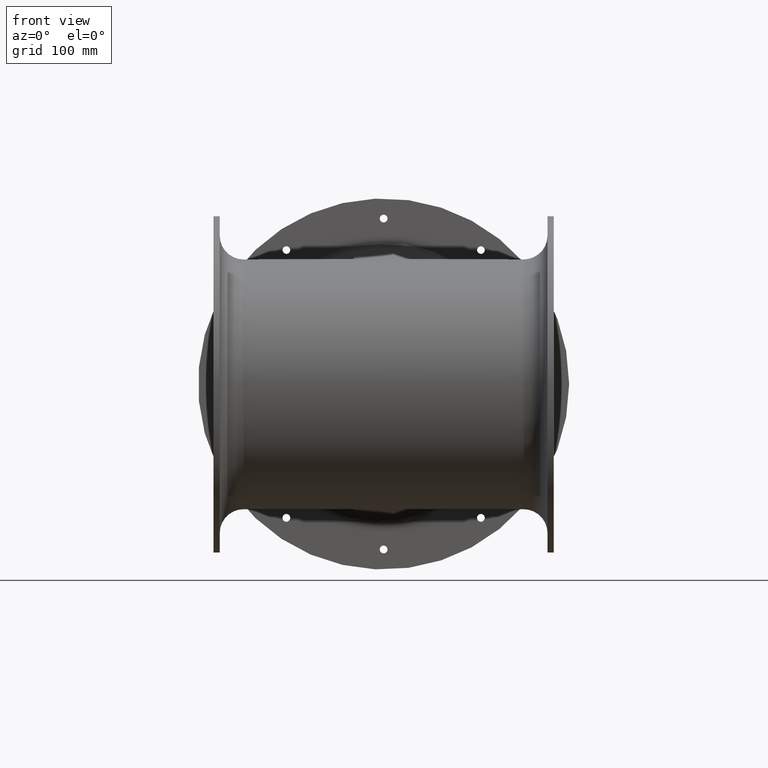
[diagram: clean part render]
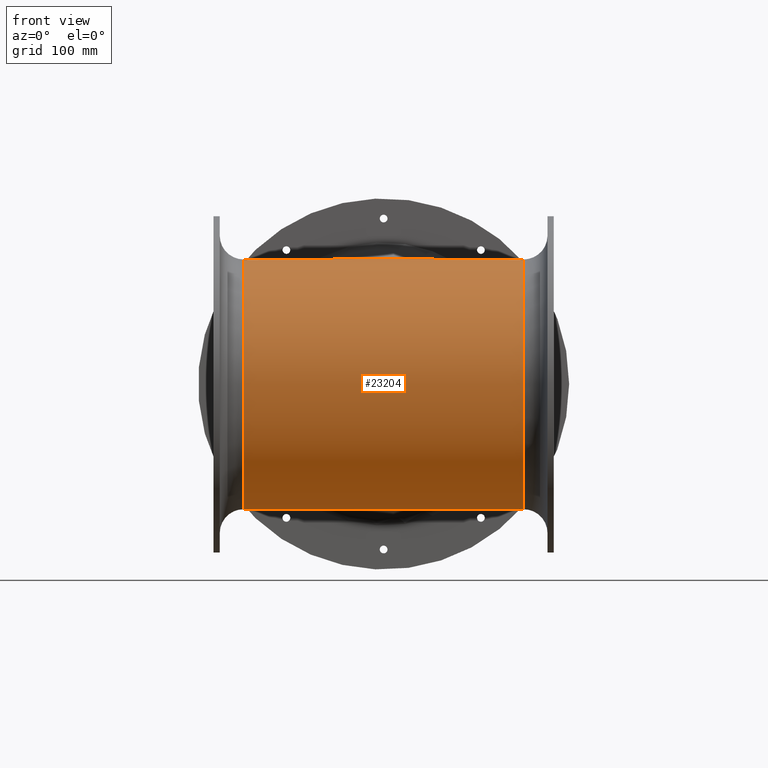
[diagram: same view with one face highlighted and labeled with its STEP entity id]
A machine part, front view. The second image highlights one B-rep face of the part: STEP entity #23204.
In plain terms, the highlighted cylindrical surface (bore or boss wall) has radius 202.5 mm, axis along (1, 0, -0).
Its self-contained STEP definition (entity closure, byte-faithful):
#1283=CIRCLE('',#24619,202.5);
#1284=CIRCLE('',#24620,202.5);
#4580=FACE_BOUND('',#6194,.T.);
#4581=FACE_BOUND('',#6195,.T.);
#4780=FACE_OUTER_BOUND('',#6193,.T.);
#6193=EDGE_LOOP('',(#14747));
#6194=EDGE_LOOP('',(#14748));
#6195=EDGE_LOOP('',(#14749));
#7784=B_SPLINE_CURVE_WITH_KNOTS('',3,(#31965,#31966,#31967,#31968,#31969,
#31970,#31971,#31972,#31973,#31974,#31975,#31976,#31977,#31978,#31979,#31980,
#31981,#31982,#31983,#31984,#31985,#31986,#31987,#31988,#31989,#31990,#31991,
#31992,#31993,#31994,#31995,#31996,#31997,#31998,#31999,#32000,#32001,#32002,
#32003,#32004,#32005,#32006,#32007,#32008,#32009,#32010,#32011,#32012,#32013,
#32014,#32015,#32016,#32017,#32018,#32019,#32020,#32021,#32022,#32023,#32024,
#32025,#32026,#32027,#32028,#32029,#32030,#32031,#32032,#32033,#32034,#32035,
#32036,#32037,#32038,#32039,#32040,#32041,#32042,#32043,#32044,#32045,#32046,
#32047,#32048,#32049,#32050,#32051,#32052,#32053,#32054,#32055,#32056,#32057,
#32058,#32059,#32060,#32061,#32062,#32063,#32064,#32065,#32066,#32067,#32068,
#32069,#32070,#32071,#32072,#32073,#32074,#32075,#32076,#32077,#32078,#32079,
#32080,#32081,#32082,#32083,#32084,#32085,#32086,#32087,#32088,#32089,#32090,
#32091,#32092,#32093,#32094,#32095,#32096,#32097,#32098,#32099,#32100,#32101,
#32102,#32103,#32104,#32105,#32106,#32107,#32108,#32109,#32110,#32111,#32112,
#32113,#32114,#32115,#32116,#32117,#32118,#32119,#32120,#32121,#32122,#32123,
#32124,#32125,#32126,#32127,#32128,#32129,#32130,#32131,#32132,#32133,#32134,
#32135,#32136,#32137,#32138,#32139,#32140,#32141,#32142,#32143,#32144,#32145,
#32146,#32147,#32148,#32149,#32150,#32151,#32152,#32153,#32154,#32155,#32156,
#32157,#32158,#32159,#32160,#32161,#32162,#32163,#32164,#32165,#32166,#32167,
#32168,#32169,#32170,#32171,#32172,#32173,#32174,#32175,#32176,#32177,#32178,
#32179,#32180,#32181,#32182,#32183,#32184,#32185,#32186,#32187,#32188,#32189,
#32190,#32191,#32192,#32193,#32194,#32195,#32196,#32197,#32198,#32199,#32200,
#32201,#32202,#32203,#32204,#32205,#32206,#32207,#32208,#32209,#32210,#32211,
#32212,#32213,#32214,#32215,#32216,#32217,#32218,#32219,#32220,#32221,#32222,
#32223,#32224,#32225,#32226,#32227,#32228,#32229,#32230,#32231,#32232,#32233,
#32234,#32235,#32236,#32237,#32238,#32239,#32240,#32241,#32242,#32243,#32244,
#32245,#32246,#32247,#32248,#32249,#32250,#32251,#32252,#32253,#32254,#32255,
#32256,#32257,#32258,#32259,#32260,#32261,#32262,#32263,#32264,#32265,#32266,
#32267,#32268,#32269,#32270,#32271,#32272,#32273,#32274,#32275,#32276,#32277,
#32278,#32279,#32280,#32281,#32282,#32283,#32284,#32285,#32286,#32287,#32288,
#32289,#32290,#32291,#32292,#32293,#32294,#32295,#32296,#32297,#32298,#32299,
#32300,#32301,#32302,#32303,#32304,#32305,#32306,#32307,#32308,#32309,#32310,
#32311,#32312,#32313,#32314,#32315,#32316,#32317,#32318,#32319,#32320,#32321,
#32322,#32323,#32324,#32325,#32326,#32327,#32328,#32329,#32330,#32331,#32332,
#32333,#32334,#32335,#32336,#32337,#32338,#32339,#32340,#32341,#32342,#32343,
#32344,#32345,#32346,#32347,#32348,#32349),.UNSPECIFIED.,.T.,.F.,(4,3,3,
3,3,3,3,3,3,3,3,3,3,3,3,3,3,3,3,3,3,3,3,3,3,3,3,3,3,3,3,3,3,3,3,3,3,3,3,
3,3,3,3,3,3,3,3,3,3,3,3,3,3,3,3,3,3,3,3,3,3,3,3,3,3,3,3,3,3,3,3,3,3,3,3,
3,3,3,3,3,3,3,3,3,3,3,3,3,3,3,3,3,3,3,3,3,3,3,3,3,3,3,3,3,3,3,3,3,3,3,3,
3,3,3,3,3,3,3,3,3,3,3,3,3,3,3,3,3,4),(-160.342906912036,-160.081610975274,
-159.806046325259,-159.70745696218,-159.627059865564,-158.911603294999,
-158.196065782003,-157.71663035812,-157.65844358391,-157.479094196927,-156.045520752024,
-154.613641021606,-151.752290572736,-149.810930225153,-148.890155718497,
-147.45892251172,-145.816008437067,-145.668549316929,-144.594002031974,
-143.161990087913,-137.436836950914,-136.959595278468,-136.665929451944,
-136.1641162625,-134.891639086557,-130.162442041686,-129.800813206733,-129.562154742946,
-127.892585473663,-126.461189080719,-126.039837570184,-125.983600632645,
-122.695283499125,-122.165629504571,-120.625039987267,-118.692210297802,
-118.34832113825,-116.439800674157,-116.069722114912,-114.530009733055,
-112.622185500934,-110.713585221901,-110.068461128252,-108.803075963811,
-106.894432287388,-103.077776392632,-102.68580357898,-101.884102439985,
-101.168158906038,-99.2597980532162,-95.4440953012599,-93.5352335895442,
-91.6495833604302,-91.6246814189812,-87.805743866731,-85.897824174083,-84.5253022285759,
-83.9893061310752,-83.7009996830874,-82.7160553985728,-82.2390318148518,
-81.7454708848339,-81.4439640252966,-81.025646101809,-80.8076057675436,
-80.531767047028,-80.287961013862,-80.1716033146539,-80.0854849546987,-79.8375311491397,
-79.5349982732622,-79.3190264793224,-78.8993080078128,-78.0180719655853,
-77.6264146846165,-76.3537563673086,-76.2634474649733,-75.636812081051,
-75.3979507631704,-74.4430331145185,-72.5348999443966,-69.6731482481115,
-68.9386351468239,-68.7183700297651,-64.9011242767384,-61.0844988520505,
-58.7703045195937,-57.2641197006221,-54.4022140550659,-53.4482350096057,
-51.6487655418366,-50.9021158366082,-48.3580124577464,-46.7305625843402,
-45.8116971581924,-43.9036909448839,-42.9208168368777,-41.9944043869412,
-40.7550662017537,-38.8470287143703,-38.1767120407175,-37.2227430335197,
-36.4198872014549,-34.3586547744628,-32.4507825263865,-31.5152553461049,
-30.5409726766878,-25.4522695863814,-24.2770105557074,-24.1785704467151,
-22.9049318856175,-17.1807867851427,-15.7491697433524,-14.2375590226819,
-11.4519378130212,-8.58974760449831,-7.63804363807765,-5.72603196125493,
-4.29487985096732,-3.23889387569538,-2.86323948060928,-2.77950123683371,
-1.47209831865792,-1.43167218082337,-1.27598788093155,-0.715991356617883,
-0.534179025333353,-0.212204773589796,0.),.UNSPECIFIED.);
#9105=VERTEX_POINT('',#31875);
#9108=VERTEX_POINT('',#32354);
#9109=VERTEX_POINT('',#32356);
#11294=EDGE_CURVE('',#9105,#9105,#7784,.T.);
#11296=EDGE_CURVE('',#9108,#9108,#1283,.T.);
#11297=EDGE_CURVE('',#9109,#9109,#1284,.T.);
#14747=ORIENTED_EDGE('',*,*,#11296,.F.);
#14748=ORIENTED_EDGE('',*,*,#11297,.T.);
#14749=ORIENTED_EDGE('',*,*,#11294,.F.);
#21532=CYLINDRICAL_SURFACE('',#24618,202.5);
#23204=ADVANCED_FACE('',(#4780,#4580,#4581),#21532,.T.);
#24618=AXIS2_PLACEMENT_3D('',#32353,#26279,#26280);
#24619=AXIS2_PLACEMENT_3D('',#32355,#26281,#26282);
#24620=AXIS2_PLACEMENT_3D('',#32357,#26283,#26284);
#26279=DIRECTION('center_axis',(1.,2.75075785414574E-15,-9.97823151778132E-16));
#26280=DIRECTION('ref_axis',(-9.97823151778074E-16,-2.09740053427586E-14,
-1.));
#26281=DIRECTION('center_axis',(1.,2.75075785414574E-15,-9.97823151778132E-16));
#26282=DIRECTION('ref_axis',(-9.97823151778074E-16,-2.09740053427586E-14,
-1.));
#26283=DIRECTION('center_axis',(1.,2.75075785414574E-15,-9.97823151778132E-16));
#26284=DIRECTION('ref_axis',(-9.97823151778074E-16,-2.09740053427586E-14,
-1.));
#31875=CARTESIAN_POINT('',(-619.546366146059,761.216708096501,488.345023507196));
#31965=CARTESIAN_POINT('Ctrl Pts',(-619.546366145671,761.216708097107,488.345023507166));
#31966=CARTESIAN_POINT('Ctrl Pts',(-618.652493804318,761.216708097358,488.345023507154));
#31967=CARTESIAN_POINT('Ctrl Pts',(-617.757691795606,761.269158578316,488.342468680898));
#31968=CARTESIAN_POINT('Ctrl Pts',(-616.870455212771,761.371310158735,488.337377584712));
#31969=CARTESIAN_POINT('Ctrl Pts',(-615.934768873905,761.479039979778,488.332008476582));
#31970=CARTESIAN_POINT('Ctrl Pts',(-615.004232804283,761.641070294143,488.323862069854));
#31971=CARTESIAN_POINT('Ctrl Pts',(-614.087220509187,761.85106832479,488.31289658576));
#31972=CARTESIAN_POINT('Ctrl Pts',(-613.759139029564,761.926199776114,488.308973440709));
#31973=CARTESIAN_POINT('Ctrl Pts',(-613.432785559318,762.007463503721,488.304688088026));
#31974=CARTESIAN_POINT('Ctrl Pts',(-613.108370297078,762.094177373768,488.300055603557));
#31975=CARTESIAN_POINT('Ctrl Pts',(-612.84381797249,762.164890310442,488.296277931304));
#31976=CARTESIAN_POINT('Ctrl Pts',(-612.580448851027,762.23928743919,488.29226621087));
#31977=CARTESIAN_POINT('Ctrl Pts',(-612.31834750872,762.317026791313,488.288027243306));
#31978=CARTESIAN_POINT('Ctrl Pts',(-609.985898509938,763.00883200081,488.250304522916));
#31979=CARTESIAN_POINT('Ctrl Pts',(-607.753948644586,763.965528843165,488.1944096836));
#31980=CARTESIAN_POINT('Ctrl Pts',(-605.586703603494,765.066907231537,488.11931255779));
#31981=CARTESIAN_POINT('Ctrl Pts',(-603.419213373401,766.168410223201,488.044206935945));
#31982=CARTESIAN_POINT('Ctrl Pts',(-601.316412140841,767.414485484406,487.949801504174));
#31983=CARTESIAN_POINT('Ctrl Pts',(-599.275839876772,768.722861225201,487.836755843185));
#31984=CARTESIAN_POINT('Ctrl Pts',(-597.908584337238,769.599519215164,487.761011254802));
#31985=CARTESIAN_POINT('Ctrl Pts',(-596.569250574578,770.504149750164,487.677044365227));
#31986=CARTESIAN_POINT('Ctrl Pts',(-595.255868244134,771.424781380876,487.585056039647));
#31987=CARTESIAN_POINT('Ctrl Pts',(-595.09646934012,771.53651401922,487.573891858479));
#31988=CARTESIAN_POINT('Ctrl Pts',(-594.937424284612,771.648504980322,487.562607991637));
#31989=CARTESIAN_POINT('Ctrl Pts',(-594.77872895805,771.760734145174,487.551205164301));
#31990=CARTESIAN_POINT('Ctrl Pts',(-594.289581554319,772.106658664816,487.516058172217));
#31991=CARTESIAN_POINT('Ctrl Pts',(-593.803756956828,772.454846210195,487.479781305552));
#31992=CARTESIAN_POINT('Ctrl Pts',(-593.319705447315,772.805388007599,487.442327262654));
#31993=CARTESIAN_POINT('Ctrl Pts',(-589.450590522123,775.60733464672,487.142950040312));
#31994=CARTESIAN_POINT('Ctrl Pts',(-585.694805618939,778.559676787279,486.767152931257));
#31995=CARTESIAN_POINT('Ctrl Pts',(-581.998448303942,781.569143682441,486.312063960826));
#31996=CARTESIAN_POINT('Ctrl Pts',(-578.306458099642,784.575055002763,485.857512661335));
#31997=CARTESIAN_POINT('Ctrl Pts',(-574.673726421535,787.638009919266,485.324704888202));
#31998=CARTESIAN_POINT('Ctrl Pts',(-571.07189023225,790.727731583137,484.711245775177));
#31999=CARTESIAN_POINT('Ctrl Pts',(-563.874277626924,796.901976725372,483.485359640241));
#32000=CARTESIAN_POINT('Ctrl Pts',(-556.80005106224,803.18298183582,481.936492192086));
#32001=CARTESIAN_POINT('Ctrl Pts',(-549.811010250746,809.460401376926,480.053938020954));
#32002=CARTESIAN_POINT('Ctrl Pts',(-545.069107103428,813.719485889645,478.77666839414));
#32003=CARTESIAN_POINT('Ctrl Pts',(-540.366396079924,817.977165487797,477.346719943772));
#32004=CARTESIAN_POINT('Ctrl Pts',(-535.710886103983,822.215175762228,475.762022572513));
#32005=CARTESIAN_POINT('Ctrl Pts',(-533.502808192703,824.225236297617,475.010410981168));
#32006=CARTESIAN_POINT('Ctrl Pts',(-531.304196921742,826.231786811195,474.223680893785));
#32007=CARTESIAN_POINT('Ctrl Pts',(-529.11607860459,828.232805618885,473.401737225632));
#32008=CARTESIAN_POINT('Ctrl Pts',(-525.714911898494,831.343148644505,472.124124668535));
#32009=CARTESIAN_POINT('Ctrl Pts',(-522.339099808661,834.440085660915,470.761329596188));
#32010=CARTESIAN_POINT('Ctrl Pts',(-518.99711426872,837.512165114408,469.315711304828));
#32011=CARTESIAN_POINT('Ctrl Pts',(-515.160845619516,841.038608288516,467.65628457674));
#32012=CARTESIAN_POINT('Ctrl Pts',(-511.369146061002,844.532455890204,465.888047937561));
#32013=CARTESIAN_POINT('Ctrl Pts',(-507.617972508958,847.995829640591,464.005580725556));
#32014=CARTESIAN_POINT('Ctrl Pts',(-507.281287371247,848.306683417927,463.836620605819));
#32015=CARTESIAN_POINT('Ctrl Pts',(-506.944887817214,848.617325501066,463.666720207303));
#32016=CARTESIAN_POINT('Ctrl Pts',(-506.608769870089,848.927757584316,463.495873803803));
#32017=CARTESIAN_POINT('Ctrl Pts',(-504.159449494595,851.189902861633,462.250901374471));
#32018=CARTESIAN_POINT('Ctrl Pts',(-501.725084012354,853.440922053374,460.955743550706));
#32019=CARTESIAN_POINT('Ctrl Pts',(-499.303517656462,855.682253232738,459.607335874912));
#32020=CARTESIAN_POINT('Ctrl Pts',(-496.076380057658,858.669197655179,457.810359674575));
#32021=CARTESIAN_POINT('Ctrl Pts',(-492.871971111673,861.638844399713,455.91865255787));
#32022=CARTESIAN_POINT('Ctrl Pts',(-489.700159656451,864.581091806051,453.932728872514));
#32023=CARTESIAN_POINT('Ctrl Pts',(-477.019325269454,876.344134033522,445.993048436042));
#32024=CARTESIAN_POINT('Ctrl Pts',(-464.860187877286,887.668760585621,436.545848168682));
#32025=CARTESIAN_POINT('Ctrl Pts',(-453.66067169434,898.11237857741,425.55122460697));
#32026=CARTESIAN_POINT('Ctrl Pts',(-452.727093900727,898.982945634312,424.634726408416));
#32027=CARTESIAN_POINT('Ctrl Pts',(-451.800178208063,899.847392313896,423.707484343248));
#32028=CARTESIAN_POINT('Ctrl Pts',(-450.880400645012,900.705349863333,422.76960301763));
#32029=CARTESIAN_POINT('Ctrl Pts',(-450.314424843093,901.233285346391,422.192487248887));
#32030=CARTESIAN_POINT('Ctrl Pts',(-449.751151813853,901.758764961721,421.611343911578));
#32031=CARTESIAN_POINT('Ctrl Pts',(-449.190429510586,902.281922138532,421.025949201209));
#32032=CARTESIAN_POINT('Ctrl Pts',(-448.232272919044,903.175887822531,420.025632650351));
#32033=CARTESIAN_POINT('Ctrl Pts',(-447.28140781651,904.063233028277,419.012732104754));
#32034=CARTESIAN_POINT('Ctrl Pts',(-446.337086745153,904.944538056021,417.986063403308));
#32035=CARTESIAN_POINT('Ctrl Pts',(-443.942516344569,907.179314973888,415.382679280833));
#32036=CARTESIAN_POINT('Ctrl Pts',(-441.59002564228,909.375097798106,412.690653463355));
#32037=CARTESIAN_POINT('Ctrl Pts',(-439.292864493951,911.520097124681,409.915078297853));
#32038=CARTESIAN_POINT('Ctrl Pts',(-430.755400781706,919.492047166907,399.599575498531));
#32039=CARTESIAN_POINT('Ctrl Pts',(-422.983286146871,926.757632187585,388.125832070791));
#32040=CARTESIAN_POINT('Ctrl Pts',(-416.401175610957,932.913345136752,375.641482076938));
#32041=CARTESIAN_POINT('Ctrl Pts',(-415.897859521132,933.384055762888,374.686837789422));
#32042=CARTESIAN_POINT('Ctrl Pts',(-415.401321948826,933.848481450167,373.725963062049));
#32043=CARTESIAN_POINT('Ctrl Pts',(-414.911783127042,934.306428054695,372.758955638983));
#32044=CARTESIAN_POINT('Ctrl Pts',(-414.58870993188,934.6086518338,372.120775041218));
#32045=CARTESIAN_POINT('Ctrl Pts',(-414.268684963261,934.908055563213,371.479924206457));
#32046=CARTESIAN_POINT('Ctrl Pts',(-413.951489730434,935.204809530658,370.835928932817));
#32047=CARTESIAN_POINT('Ctrl Pts',(-411.732505309396,937.280794168804,366.330768288713));
#32048=CARTESIAN_POINT('Ctrl Pts',(-409.652089667039,939.226143498468,361.671287074041));
#32049=CARTESIAN_POINT('Ctrl Pts',(-407.748201353035,941.007587708483,356.898392144343));
#32050=CARTESIAN_POINT('Ctrl Pts',(-406.115912764972,942.534899490847,352.806375890829));
#32051=CARTESIAN_POINT('Ctrl Pts',(-404.613374312098,943.942241478376,348.631094557792));
#32052=CARTESIAN_POINT('Ctrl Pts',(-403.249408670715,945.2183450661,344.386149105026));
#32053=CARTESIAN_POINT('Ctrl Pts',(-402.847906343234,945.593983971534,343.136590151632));
#32054=CARTESIAN_POINT('Ctrl Pts',(-402.45840586277,945.958267789556,341.881008979661));
#32055=CARTESIAN_POINT('Ctrl Pts',(-402.081309172245,946.311120189809,340.6190930996));
#32056=CARTESIAN_POINT('Ctrl Pts',(-402.030978836407,946.358214689051,340.450667728498));
#32057=CARTESIAN_POINT('Ctrl Pts',(-401.98086314246,946.405110393898,340.282111999532));
#32058=CARTESIAN_POINT('Ctrl Pts',(-401.930963249443,946.451806912028,340.113425217079));
#32059=CARTESIAN_POINT('Ctrl Pts',(-399.013189267605,949.182271396081,330.249878921465));
#32060=CARTESIAN_POINT('Ctrl Pts',(-396.837026634295,951.220252944696,319.933626138012));
#32061=CARTESIAN_POINT('Ctrl Pts',(-395.537754889764,952.43593424986,309.479958755927));
#32062=CARTESIAN_POINT('Ctrl Pts',(-395.32847931154,952.63174579517,307.796171438025));
#32063=CARTESIAN_POINT('Ctrl Pts',(-395.141209306322,952.806812413054,306.106418027498));
#32064=CARTESIAN_POINT('Ctrl Pts',(-394.976682735499,952.960742656979,304.412290755821));
#32065=CARTESIAN_POINT('Ctrl Pts',(-394.498128975998,953.408475181654,299.484630920231));
#32066=CARTESIAN_POINT('Ctrl Pts',(-394.212344076009,953.676758121919,294.519751172341));
#32067=CARTESIAN_POINT('Ctrl Pts',(-394.12235112537,953.761779934495,289.557409304354));
#32068=CARTESIAN_POINT('Ctrl Pts',(-394.009445614276,953.868448636153,283.331635609293));
#32069=CARTESIAN_POINT('Ctrl Pts',(-394.202271307799,953.686438471771,277.082805051475));
#32070=CARTESIAN_POINT('Ctrl Pts',(-394.699810791057,953.220367503906,270.890353794594));
#32071=CARTESIAN_POINT('Ctrl Pts',(-394.788333041969,953.1374441329,269.788592542734));
#32072=CARTESIAN_POINT('Ctrl Pts',(-394.886464083681,953.045515784878,268.687690998396));
#32073=CARTESIAN_POINT('Ctrl Pts',(-394.994220843027,952.944628869019,267.588028826426));
#32074=CARTESIAN_POINT('Ctrl Pts',(-395.592250686784,952.384725370671,261.485109613947));
#32075=CARTESIAN_POINT('Ctrl Pts',(-396.487351782239,951.547300450746,255.420421789895));
#32076=CARTESIAN_POINT('Ctrl Pts',(-397.656858044699,950.452233176919,249.465314994408));
#32077=CARTESIAN_POINT('Ctrl Pts',(-397.88363538389,950.23989019889,248.310568485533));
#32078=CARTESIAN_POINT('Ctrl Pts',(-398.120708827034,950.017920320726,247.159934188641));
#32079=CARTESIAN_POINT('Ctrl Pts',(-398.367933365781,949.786486789331,246.013617493596));
#32080=CARTESIAN_POINT('Ctrl Pts',(-399.396511417377,948.823607246699,241.244365223247));
#32081=CARTESIAN_POINT('Ctrl Pts',(-400.602991212332,947.694191822534,236.536324398772));
#32082=CARTESIAN_POINT('Ctrl Pts',(-401.979818202516,946.405838040006,231.89759835856));
#32083=CARTESIAN_POINT('Ctrl Pts',(-403.685814677094,944.809466798976,226.149853487521));
#32084=CARTESIAN_POINT('Ctrl Pts',(-405.653388292269,942.967666804612,220.508952482079));
#32085=CARTESIAN_POINT('Ctrl Pts',(-407.845387237724,940.916622247055,215.035174749133));
#32086=CARTESIAN_POINT('Ctrl Pts',(-410.038277824026,938.864743384761,209.559170444035));
#32087=CARTESIAN_POINT('Ctrl Pts',(-412.455734960465,936.604121890353,204.250115109189));
#32088=CARTESIAN_POINT('Ctrl Pts',(-415.053509395914,934.174244266183,199.139279312796));
#32089=CARTESIAN_POINT('Ctrl Pts',(-415.931580564918,933.352923732392,197.411770757362));
#32090=CARTESIAN_POINT('Ctrl Pts',(-416.830245319684,932.512354654545,195.706868125909));
#32091=CARTESIAN_POINT('Ctrl Pts',(-417.749034715529,931.653126274443,194.023577794872));
#32092=CARTESIAN_POINT('Ctrl Pts',(-419.551203448946,929.967784096479,190.721870986349));
#32093=CARTESIAN_POINT('Ctrl Pts',(-421.433287737398,928.208363559195,187.498553012482));
#32094=CARTESIAN_POINT('Ctrl Pts',(-423.39259670831,926.376960476024,184.346917707172));
#32095=CARTESIAN_POINT('Ctrl Pts',(-426.347920338282,923.614563688148,179.593148684973));
#32096=CARTESIAN_POINT('Ctrl Pts',(-429.478973348015,920.687705440284,175.002936575652));
#32097=CARTESIAN_POINT('Ctrl Pts',(-432.755382449459,917.626563663495,170.594269186583));
#32098=CARTESIAN_POINT('Ctrl Pts',(-439.307116681014,911.505292861936,161.778392977542));
#32099=CARTESIAN_POINT('Ctrl Pts',(-446.44035013558,904.845662765392,153.689632385472));
#32100=CARTESIAN_POINT('Ctrl Pts',(-453.914417832706,897.875371358321,146.376495377379));
#32101=CARTESIAN_POINT('Ctrl Pts',(-454.682008997706,897.159518315726,145.625431889151));
#32102=CARTESIAN_POINT('Ctrl Pts',(-455.45319136814,896.440418081933,144.882516401546));
#32103=CARTESIAN_POINT('Ctrl Pts',(-456.228099610878,895.717954403451,144.147402028485));
#32104=CARTESIAN_POINT('Ctrl Pts',(-457.813017745973,894.240301020996,142.643874208062));
#32105=CARTESIAN_POINT('Ctrl Pts',(-459.414341149613,892.747829133419,141.172177887667));
#32106=CARTESIAN_POINT('Ctrl Pts',(-461.033326870417,891.239209608484,139.729641410605));
#32107=CARTESIAN_POINT('Ctrl Pts',(-462.479130427357,889.891966425796,138.441412402311));
#32108=CARTESIAN_POINT('Ctrl Pts',(-463.939020000674,888.531827720058,137.176466326255));
#32109=CARTESIAN_POINT('Ctrl Pts',(-465.412173163191,887.159774965809,135.934946814397));
#32110=CARTESIAN_POINT('Ctrl Pts',(-469.338890414281,883.502542739995,132.625653382579));
#32111=CARTESIAN_POINT('Ctrl Pts',(-473.359858804397,879.760571712518,129.482796907156));
#32112=CARTESIAN_POINT('Ctrl Pts',(-477.457416540766,875.950933205493,126.506842854631));
#32113=CARTESIAN_POINT('Ctrl Pts',(-485.650344156026,868.3336903168,120.556523735935));
#32114=CARTESIAN_POINT('Ctrl Pts',(-494.149546212573,860.446609695343,115.273456225081));
#32115=CARTESIAN_POINT('Ctrl Pts',(-502.855995263071,852.395928052052,110.634296673071));
#32116=CARTESIAN_POINT('Ctrl Pts',(-507.211525113759,848.368455541461,108.313488523424));
#32117=CARTESIAN_POINT('Ctrl Pts',(-511.618891974531,844.299805602388,106.154043076667));
#32118=CARTESIAN_POINT('Ctrl Pts',(-516.056853981116,840.215193775024,104.157576648544));
#32119=CARTESIAN_POINT('Ctrl Pts',(-520.440851010946,836.180250237293,102.185386963715));
#32120=CARTESIAN_POINT('Ctrl Pts',(-524.854714060165,832.130062642657,100.371634643763));
#32121=CARTESIAN_POINT('Ctrl Pts',(-529.305227366772,828.060368665224,98.7043327328479));
#32122=CARTESIAN_POINT('Ctrl Pts',(-529.364000950583,828.006624190466,98.6823143044447));
#32123=CARTESIAN_POINT('Ctrl Pts',(-529.422782248236,827.952875544422,98.6603211700403));
#32124=CARTESIAN_POINT('Ctrl Pts',(-529.481571270831,827.899122712387,98.6383533077005));
#32125=CARTESIAN_POINT('Ctrl Pts',(-538.497398671552,819.655640604039,95.2693832776254));
#32126=CARTESIAN_POINT('Ctrl Pts',(-547.693971690061,811.31242730075,92.4959706494639));
#32127=CARTESIAN_POINT('Ctrl Pts',(-557.079456805771,802.978622550096,90.2959349403814));
#32128=CARTESIAN_POINT('Ctrl Pts',(-561.768392310037,798.815100633095,89.19680949084));
#32129=CARTESIAN_POINT('Ctrl Pts',(-566.504652079028,794.653987547185,88.2411818981534));
#32130=CARTESIAN_POINT('Ctrl Pts',(-571.297146696747,790.540768558532,87.4285323521705));
#32131=CARTESIAN_POINT('Ctrl Pts',(-574.744778199211,787.5817953112,86.8439273815493));
#32132=CARTESIAN_POINT('Ctrl Pts',(-578.221528608733,784.647622683333,86.3332681999928));
#32133=CARTESIAN_POINT('Ctrl Pts',(-581.757077092382,781.766119830416,85.8946296025098));
#32134=CARTESIAN_POINT('Ctrl Pts',(-583.137776465505,780.640837798201,85.7233328321859));
#32135=CARTESIAN_POINT('Ctrl Pts',(-584.527452613893,779.524504677207,85.5631131479221));
#32136=CARTESIAN_POINT('Ctrl Pts',(-585.927595354822,778.41874679513,85.4136365987513));
#32137=CARTESIAN_POINT('Ctrl Pts',(-586.680716846183,777.823971704785,85.3332347951749));
#32138=CARTESIAN_POINT('Ctrl Pts',(-587.436866429054,777.232255785013,85.2559423403566));
#32139=CARTESIAN_POINT('Ctrl Pts',(-588.196763211655,776.644744358277,85.1818018037156));
#32140=CARTESIAN_POINT('Ctrl Pts',(-590.792806408287,774.637623026481,84.9285147255908));
#32141=CARTESIAN_POINT('Ctrl Pts',(-593.437858787752,772.674034390544,84.711699299089));
#32142=CARTESIAN_POINT('Ctrl Pts',(-596.159615874973,770.801262950213,84.5304247344442));
#32143=CARTESIAN_POINT('Ctrl Pts',(-597.477804467138,769.894251093805,84.4426306898227));
#32144=CARTESIAN_POINT('Ctrl Pts',(-598.814001002952,769.00855667257,84.3631299947792));
#32145=CARTESIAN_POINT('Ctrl Pts',(-600.173204742435,768.156892581673,84.2919510780683));
#32146=CARTESIAN_POINT('Ctrl Pts',(-601.579529051413,767.275703191649,84.2183045466841));
#32147=CARTESIAN_POINT('Ctrl Pts',(-603.010485022815,766.430949843252,84.1535956810029));
#32148=CARTESIAN_POINT('Ctrl Pts',(-604.477446032282,765.645619255398,84.0977874831026));
#32149=CARTESIAN_POINT('Ctrl Pts',(-605.3735842396,765.165875935289,84.0636953306205));
#32150=CARTESIAN_POINT('Ctrl Pts',(-606.283917943249,764.708403519491,84.0329115578848));
#32151=CARTESIAN_POINT('Ctrl Pts',(-607.21046844738,764.278688664513,84.0052952480336));
#32152=CARTESIAN_POINT('Ctrl Pts',(-608.49598707037,763.682491861223,83.9669797105063));
#32153=CARTESIAN_POINT('Ctrl Pts',(-609.812736557102,763.139778315203,83.93480802447));
#32154=CARTESIAN_POINT('Ctrl Pts',(-611.159293782892,762.684274247787,83.909140421959));
#32155=CARTESIAN_POINT('Ctrl Pts',(-611.861161360477,762.446851336786,83.8957616678654));
#32156=CARTESIAN_POINT('Ctrl Pts',(-612.572792444153,762.231877782324,83.884069043531));
#32157=CARTESIAN_POINT('Ctrl Pts',(-613.293381759613,762.045028770455,83.8741326180902));
#32158=CARTESIAN_POINT('Ctrl Pts',(-614.20498573171,761.808649604475,83.8615622333981));
#32159=CARTESIAN_POINT('Ctrl Pts',(-615.130940665121,761.61733001112,83.85179399038));
#32160=CARTESIAN_POINT('Ctrl Pts',(-616.062930069976,761.478731167401,83.8448126118923));
#32161=CARTESIAN_POINT('Ctrl Pts',(-616.886689110497,761.35622757463,83.8386419691634));
#32162=CARTESIAN_POINT('Ctrl Pts',(-617.718703435003,761.27396913618,83.8345992497922));
#32163=CARTESIAN_POINT('Ctrl Pts',(-618.551871522078,761.238126438559,83.8328365587431));
#32164=CARTESIAN_POINT('Ctrl Pts',(-618.949505331245,761.22102032443,83.8319953052588));
#32165=CARTESIAN_POINT('Ctrl Pts',(-619.347886029507,761.213979105607,83.8316504438502));
#32166=CARTESIAN_POINT('Ctrl Pts',(-619.746142225049,761.217435151312,83.8318200526697));
#32167=CARTESIAN_POINT('Ctrl Pts',(-620.040898572377,761.219993030937,83.8319455831114));
#32168=CARTESIAN_POINT('Ctrl Pts',(-620.335586906062,761.228298834206,83.8323530216791));
#32169=CARTESIAN_POINT('Ctrl Pts',(-620.629827452253,761.242060389872,83.8330300630223));
#32170=CARTESIAN_POINT('Ctrl Pts',(-621.477011063458,761.28168295235,83.8349794147944));
#32171=CARTESIAN_POINT('Ctrl Pts',(-622.322814818181,761.369279846011,83.8392878059123));
#32172=CARTESIAN_POINT('Ctrl Pts',(-623.159817092713,761.498384832163,83.8458035463088));
#32173=CARTESIAN_POINT('Ctrl Pts',(-624.181058547989,761.655908136403,83.8537535177809));
#32174=CARTESIAN_POINT('Ctrl Pts',(-625.195277049979,761.876583458426,83.8650601723637));
#32175=CARTESIAN_POINT('Ctrl Pts',(-626.19087772026,762.149772883249,83.8797300005319));
#32176=CARTESIAN_POINT('Ctrl Pts',(-626.90161589106,762.34479701077,83.890202479257));
#32177=CARTESIAN_POINT('Ctrl Pts',(-627.602874670165,762.566551541055,83.9023943541677));
#32178=CARTESIAN_POINT('Ctrl Pts',(-628.294920975279,762.80978945057,83.9162522751141));
#32179=CARTESIAN_POINT('Ctrl Pts',(-629.639840198745,763.282496750594,83.943183687276));
#32180=CARTESIAN_POINT('Ctrl Pts',(-630.948115918309,763.838914860214,83.9766002961976));
#32181=CARTESIAN_POINT('Ctrl Pts',(-632.227013388925,764.445003586789,84.0160524666337));
#32182=CARTESIAN_POINT('Ctrl Pts',(-634.912171707944,765.717540458288,84.0988857868051));
#32183=CARTESIAN_POINT('Ctrl Pts',(-637.46748767988,767.209268962059,84.2085318067512));
#32184=CARTESIAN_POINT('Ctrl Pts',(-639.963852213218,768.818224945778,84.3483143158329));
#32185=CARTESIAN_POINT('Ctrl Pts',(-641.073338546712,769.533310683974,84.4104393706542));
#32186=CARTESIAN_POINT('Ctrl Pts',(-642.169458771941,770.272534779033,84.4785212345487));
#32187=CARTESIAN_POINT('Ctrl Pts',(-643.256876014609,771.026982419036,84.5524007952932));
#32188=CARTESIAN_POINT('Ctrl Pts',(-646.790349450474,773.478498350638,84.7924663884259));
#32189=CARTESIAN_POINT('Ctrl Pts',(-650.231424692565,776.090952119682,85.0950930013521));
#32190=CARTESIAN_POINT('Ctrl Pts',(-653.556582243689,778.726144376209,85.4554304499733));
#32191=CARTESIAN_POINT('Ctrl Pts',(-653.792538214313,778.913139830443,85.4810002977578));
#32192=CARTESIAN_POINT('Ctrl Pts',(-654.027913383337,779.100249502893,85.5068520681417));
#32193=CARTESIAN_POINT('Ctrl Pts',(-654.262765565832,779.2874842359,85.5329885922113));
#32194=CARTESIAN_POINT('Ctrl Pts',(-655.892357817948,780.586668544064,85.7143446974375));
#32195=CARTESIAN_POINT('Ctrl Pts',(-657.499088475377,781.89431671157,85.9097161302055));
#32196=CARTESIAN_POINT('Ctrl Pts',(-659.102361687862,783.215387431912,86.1206186943706));
#32197=CARTESIAN_POINT('Ctrl Pts',(-659.713498502479,783.718954101416,86.20101068262));
#32198=CARTESIAN_POINT('Ctrl Pts',(-660.324134174327,784.224469887829,86.2836663109756));
#32199=CARTESIAN_POINT('Ctrl Pts',(-660.933218647916,784.731194938649,86.3685088014499));
#32200=CARTESIAN_POINT('Ctrl Pts',(-663.368211130208,786.756975832496,86.7076913540221));
#32201=CARTESIAN_POINT('Ctrl Pts',(-665.77840321566,788.802081569699,87.0818618762311));
#32202=CARTESIAN_POINT('Ctrl Pts',(-668.173993362574,790.858761701486,87.4916228473094));
#32203=CARTESIAN_POINT('Ctrl Pts',(-672.9609035509,794.968455961859,88.3104143963395));
#32204=CARTESIAN_POINT('Ctrl Pts',(-677.689503307698,799.124319994346,89.2716523205552));
#32205=CARTESIAN_POINT('Ctrl Pts',(-682.374925114095,803.288319972472,90.3779538752259));
#32206=CARTESIAN_POINT('Ctrl Pts',(-689.401957614877,809.533342168679,92.0371464306803));
#32207=CARTESIAN_POINT('Ctrl Pts',(-696.331832815185,815.796603761659,94.0227334191375));
#32208=CARTESIAN_POINT('Ctrl Pts',(-703.15023967139,822.003858263235,96.3359025616102));
#32209=CARTESIAN_POINT('Ctrl Pts',(-704.900289884444,823.597046715033,96.9296134145979));
#32210=CARTESIAN_POINT('Ctrl Pts',(-706.643003787222,825.18658273548,97.5448002324344));
#32211=CARTESIAN_POINT('Ctrl Pts',(-708.37999528048,826.773424203649,98.1822346216096));
#32212=CARTESIAN_POINT('Ctrl Pts',(-708.900882700897,827.249284771864,98.3733878632644));
#32213=CARTESIAN_POINT('Ctrl Pts',(-709.421334719181,827.72497561364,98.5665721139235));
#32214=CARTESIAN_POINT('Ctrl Pts',(-709.941396591923,828.200523099467,98.761813454338));
#32215=CARTESIAN_POINT('Ctrl Pts',(-718.954189909103,836.441871729145,102.145391332961));
#32216=CARTESIAN_POINT('Ctrl Pts',(-727.849755368866,844.639627106456,106.14780579555));
#32217=CARTESIAN_POINT('Ctrl Pts',(-736.542120203475,852.678500551352,110.797430854299));
#32218=CARTESIAN_POINT('Ctrl Pts',(-745.233072469813,860.716067624762,115.446300317423));
#32219=CARTESIAN_POINT('Ctrl Pts',(-753.720785720783,868.594904242918,120.742878858385));
#32220=CARTESIAN_POINT('Ctrl Pts',(-761.885274067023,876.185201816222,126.690122361498));
#32221=CARTESIAN_POINT('Ctrl Pts',(-766.835776292382,880.787545947815,130.296207758199));
#32222=CARTESIAN_POINT('Ctrl Pts',(-771.66748821107,885.284340648888,134.140524097548));
#32223=CARTESIAN_POINT('Ctrl Pts',(-776.368819900456,889.664469493624,138.23993380627));
#32224=CARTESIAN_POINT('Ctrl Pts',(-779.428664235995,892.515260146144,140.90801944775));
#32225=CARTESIAN_POINT('Ctrl Pts',(-782.437219786713,895.320381205816,143.687869467047));
#32226=CARTESIAN_POINT('Ctrl Pts',(-785.390306939413,898.074447436816,146.585661756745));
#32227=CARTESIAN_POINT('Ctrl Pts',(-791.001475427955,903.307455760534,152.091764333982));
#32228=CARTESIAN_POINT('Ctrl Pts',(-796.412265461164,908.354667105861,158.024610535786));
#32229=CARTESIAN_POINT('Ctrl Pts',(-801.516711873487,913.122973089734,164.364031184174));
#32230=CARTESIAN_POINT('Ctrl Pts',(-803.218212733095,914.712425906957,166.477194652127));
#32231=CARTESIAN_POINT('Ctrl Pts',(-804.885692597638,916.270978430918,168.635519888266));
#32232=CARTESIAN_POINT('Ctrl Pts',(-806.51548651475,917.793886622685,170.835621700755));
#32233=CARTESIAN_POINT('Ctrl Pts',(-809.589730552451,920.666514492597,174.985624844323));
#32234=CARTESIAN_POINT('Ctrl Pts',(-812.529848630755,923.412731305234,179.283796936522));
#32235=CARTESIAN_POINT('Ctrl Pts',(-815.323277742452,926.024010015922,183.741941189483));
#32236=CARTESIAN_POINT('Ctrl Pts',(-816.482348824336,927.107501853114,185.5917486755));
#32237=CARTESIAN_POINT('Ctrl Pts',(-817.617241024264,928.168689803513,187.470805449606));
#32238=CARTESIAN_POINT('Ctrl Pts',(-818.726862001009,929.206519346805,189.380108755949));
#32239=CARTESIAN_POINT('Ctrl Pts',(-822.507738704534,932.74277688402,195.885790013069));
#32240=CARTESIAN_POINT('Ctrl Pts',(-825.9948528418,936.005254264777,202.744337525502));
#32241=CARTESIAN_POINT('Ctrl Pts',(-829.090476211817,938.900157677618,209.870033795785));
#32242=CARTESIAN_POINT('Ctrl Pts',(-831.070730592793,940.752012532218,214.428305126014));
#32243=CARTESIAN_POINT('Ctrl Pts',(-832.890868788019,942.454460670083,219.095370257684));
#32244=CARTESIAN_POINT('Ctrl Pts',(-834.535878567806,943.993840600355,223.862555080498));
#32245=CARTESIAN_POINT('Ctrl Pts',(-835.464658395081,944.862981345484,226.554128802871));
#32246=CARTESIAN_POINT('Ctrl Pts',(-836.339138203515,945.681570354677,229.28202140729));
#32247=CARTESIAN_POINT('Ctrl Pts',(-837.156089079945,946.446564722829,232.044449319415));
#32248=CARTESIAN_POINT('Ctrl Pts',(-838.852471709915,948.035060672337,237.78057723343));
#32249=CARTESIAN_POINT('Ctrl Pts',(-840.300549808653,949.390945979866,243.666121714815));
#32250=CARTESIAN_POINT('Ctrl Pts',(-841.467845431254,950.482936343319,249.632677768313));
#32251=CARTESIAN_POINT('Ctrl Pts',(-842.069156179532,951.045454980284,252.706238754669));
#32252=CARTESIAN_POINT('Ctrl Pts',(-842.596020815341,951.538304600751,255.801200416559));
#32253=CARTESIAN_POINT('Ctrl Pts',(-843.046112030654,951.95949700215,258.911147830508));
#32254=CARTESIAN_POINT('Ctrl Pts',(-843.470347547773,952.356493811097,261.842442875786));
#32255=CARTESIAN_POINT('Ctrl Pts',(-843.827810402673,952.690727370293,264.793841458201));
#32256=CARTESIAN_POINT('Ctrl Pts',(-844.115471062514,952.960151733203,267.75801469193));
#32257=CARTESIAN_POINT('Ctrl Pts',(-844.50029840388,953.320582879177,271.723433201065));
#32258=CARTESIAN_POINT('Ctrl Pts',(-844.760121131011,953.564837754215,275.711774113902));
#32259=CARTESIAN_POINT('Ctrl Pts',(-844.893911345968,953.690730878431,279.700947842333));
#32260=CARTESIAN_POINT('Ctrl Pts',(-845.099889624241,953.884551098997,285.842526556281));
#32261=CARTESIAN_POINT('Ctrl Pts',(-845.008917389903,953.797768282478,292.014576654752));
#32262=CARTESIAN_POINT('Ctrl Pts',(-844.619298161037,953.432529911847,298.140469488606));
#32263=CARTESIAN_POINT('Ctrl Pts',(-844.482420208056,953.30421724959,300.292569819283));
#32264=CARTESIAN_POINT('Ctrl Pts',(-844.309030883522,953.141514473634,302.442544250187));
#32265=CARTESIAN_POINT('Ctrl Pts',(-844.09888989358,952.944779398488,304.587138216992));
#32266=CARTESIAN_POINT('Ctrl Pts',(-843.79982528811,952.664793577316,307.639242181835));
#32267=CARTESIAN_POINT('Ctrl Pts',(-843.426296971243,952.315820230945,310.680474073616));
#32268=CARTESIAN_POINT('Ctrl Pts',(-842.981873797145,951.899999519904,313.701411588485));
#32269=CARTESIAN_POINT('Ctrl Pts',(-842.607849342958,951.55004676417,316.243818400255));
#32270=CARTESIAN_POINT('Ctrl Pts',(-842.183623029558,951.152788891268,318.771835017929));
#32271=CARTESIAN_POINT('Ctrl Pts',(-841.710679760946,950.709937431318,321.281231245184));
#32272=CARTESIAN_POINT('Ctrl Pts',(-840.496456780358,949.572971424306,327.723793744215));
#32273=CARTESIAN_POINT('Ctrl Pts',(-838.957050524315,948.129317970947,334.074827251031));
#32274=CARTESIAN_POINT('Ctrl Pts',(-837.1120266259,946.403546189202,340.287460668544));
#32275=CARTESIAN_POINT('Ctrl Pts',(-835.404276521289,944.806175584225,346.037860637771));
#32276=CARTESIAN_POINT('Ctrl Pts',(-833.434768642447,942.966154533839,351.669705817054));
#32277=CARTESIAN_POINT('Ctrl Pts',(-831.254612083523,940.925966801449,357.116689619336));
#32278=CARTESIAN_POINT('Ctrl Pts',(-830.18557000264,939.925558583104,359.787623903707));
#32279=CARTESIAN_POINT('Ctrl Pts',(-829.065908484671,938.87745541974,362.414231664982));
#32280=CARTESIAN_POINT('Ctrl Pts',(-827.897217944206,937.783970774252,364.998522031483));
#32281=CARTESIAN_POINT('Ctrl Pts',(-826.680112804468,936.64518703624,367.689870150376));
#32282=CARTESIAN_POINT('Ctrl Pts',(-825.408586854286,935.455839544115,370.338514616741));
#32283=CARTESIAN_POINT('Ctrl Pts',(-824.083933200294,934.217375164384,372.946751948599));
#32284=CARTESIAN_POINT('Ctrl Pts',(-817.165233572098,927.748844301423,386.569641678147));
#32285=CARTESIAN_POINT('Ctrl Pts',(-808.794215474525,919.91988749217,399.078550707378));
#32286=CARTESIAN_POINT('Ctrl Pts',(-799.608160697982,911.341843853006,410.145391059387));
#32287=CARTESIAN_POINT('Ctrl Pts',(-797.486599734254,909.360705815763,412.701327971781));
#32288=CARTESIAN_POINT('Ctrl Pts',(-795.321690025037,907.340577397446,415.181254082089));
#32289=CARTESIAN_POINT('Ctrl Pts',(-793.117685175776,905.283966412526,417.589616713895));
#32290=CARTESIAN_POINT('Ctrl Pts',(-792.93307695587,905.111703954441,417.791342013408));
#32291=CARTESIAN_POINT('Ctrl Pts',(-792.748177266355,904.939169187011,417.992583538802));
#32292=CARTESIAN_POINT('Ctrl Pts',(-792.562988376059,904.766363208502,418.193343440425));
#32293=CARTESIAN_POINT('Ctrl Pts',(-790.166976078002,902.530563593182,420.790816714745));
#32294=CARTESIAN_POINT('Ctrl Pts',(-787.722548557528,900.249484382805,423.307721289841));
#32295=CARTESIAN_POINT('Ctrl Pts',(-785.228836611826,897.923550971899,425.749745634944));
#32296=CARTESIAN_POINT('Ctrl Pts',(-774.021285700608,887.470051254838,436.724995691928));
#32297=CARTESIAN_POINT('Ctrl Pts',(-761.816559486486,876.103775244201,446.181459790003));
#32298=CARTESIAN_POINT('Ctrl Pts',(-749.11232923916,864.321642961956,454.107557038297));
#32299=CARTESIAN_POINT('Ctrl Pts',(-745.934982717425,861.37491448673,456.089885525149));
#32300=CARTESIAN_POINT('Ctrl Pts',(-742.726473947638,858.402430386099,457.976917302156));
#32301=CARTESIAN_POINT('Ctrl Pts',(-739.494313346394,855.411158730923,459.770140943127));
#32302=CARTESIAN_POINT('Ctrl Pts',(-736.081551083058,852.252745432946,461.663563556247));
#32303=CARTESIAN_POINT('Ctrl Pts',(-732.642417153119,849.073457430966,463.452463075481));
#32304=CARTESIAN_POINT('Ctrl Pts',(-729.177566426444,845.876631220191,465.141195420343));
#32305=CARTESIAN_POINT('Ctrl Pts',(-722.792482263868,839.985467063599,468.253219285325));
#32306=CARTESIAN_POINT('Ctrl Pts',(-716.303664081204,834.018886068997,471.033737691283));
#32307=CARTESIAN_POINT('Ctrl Pts',(-709.71634543466,827.9963027483,473.498709351137));
#32308=CARTESIAN_POINT('Ctrl Pts',(-702.947959673821,821.808175320661,476.031436243312));
#32309=CARTESIAN_POINT('Ctrl Pts',(-696.075587226795,815.560494713515,478.229398942599));
#32310=CARTESIAN_POINT('Ctrl Pts',(-689.126256261581,809.320862945242,480.095729925593));
#32311=CARTESIAN_POINT('Ctrl Pts',(-686.815541263021,807.246129307629,480.716301749884));
#32312=CARTESIAN_POINT('Ctrl Pts',(-684.496325810151,805.172296962438,481.300328885517));
#32313=CARTESIAN_POINT('Ctrl Pts',(-682.166191769481,803.101993806672,481.848262657304));
#32314=CARTESIAN_POINT('Ctrl Pts',(-677.48485844366,798.942671214718,482.949083717998));
#32315=CARTESIAN_POINT('Ctrl Pts',(-672.751579182582,794.792854298969,483.905312381828));
#32316=CARTESIAN_POINT('Ctrl Pts',(-667.948518856093,790.672169018204,484.722269552886));
#32317=CARTESIAN_POINT('Ctrl Pts',(-664.353399639292,787.587811581016,485.333766853634));
#32318=CARTESIAN_POINT('Ctrl Pts',(-660.719142532058,784.519703672968,485.866675850757));
#32319=CARTESIAN_POINT('Ctrl Pts',(-657.028687087289,781.516991267172,486.31994345664));
#32320=CARTESIAN_POINT('Ctrl Pts',(-654.305657743289,779.301418117748,486.654390250532));
#32321=CARTESIAN_POINT('Ctrl Pts',(-651.552017123452,777.121485069147,486.94561565813));
#32322=CARTESIAN_POINT('Ctrl Pts',(-648.739274005597,775.001257000201,487.19558237651));
#32323=CARTESIAN_POINT('Ctrl Pts',(-647.738674244603,774.247011194542,487.28450505028));
#32324=CARTESIAN_POINT('Ctrl Pts',(-646.730629871524,773.501102413882,487.36813838618));
#32325=CARTESIAN_POINT('Ctrl Pts',(-645.7139796425,772.764919109487,487.44664709564));
#32326=CARTESIAN_POINT('Ctrl Pts',(-645.487355101895,772.60081428917,487.464147706673));
#32327=CARTESIAN_POINT('Ctrl Pts',(-645.260303443591,772.437192356761,487.481393864391));
#32328=CARTESIAN_POINT('Ctrl Pts',(-645.032790702325,772.274129335749,487.498381561184));
#32329=CARTESIAN_POINT('Ctrl Pts',(-641.480640472715,769.728230832201,487.763610008298));
#32330=CARTESIAN_POINT('Ctrl Pts',(-637.797320766851,767.28507131286,487.966010681129));
#32331=CARTESIAN_POINT('Ctrl Pts',(-633.877500431674,765.261957264914,488.105918535771));
#32332=CARTESIAN_POINT('Ctrl Pts',(-633.756295870361,765.19940066035,488.110244619289));
#32333=CARTESIAN_POINT('Ctrl Pts',(-633.634869890456,765.137240965365,488.114514058617));
#32334=CARTESIAN_POINT('Ctrl Pts',(-633.513212619647,765.075482831265,488.118727650472));
#32335=CARTESIAN_POINT('Ctrl Pts',(-633.044700710096,764.837647302446,488.134954530727));
#32336=CARTESIAN_POINT('Ctrl Pts',(-632.572760406246,764.605764306445,488.150352039339));
#32337=CARTESIAN_POINT('Ctrl Pts',(-632.096783177919,764.381249457453,488.164895265377));
#32338=CARTESIAN_POINT('Ctrl Pts',(-630.384692789225,763.573669404876,488.217207258553));
#32339=CARTESIAN_POINT('Ctrl Pts',(-628.60991407421,762.858545538104,488.2584991898));
#32340=CARTESIAN_POINT('Ctrl Pts',(-626.777886460004,762.317081130032,488.28802428032));
#32341=CARTESIAN_POINT('Ctrl Pts',(-626.183087747771,762.141285563337,488.297610099706));
#32342=CARTESIAN_POINT('Ctrl Pts',(-625.58227728369,761.983725070445,488.305972719456));
#32343=CARTESIAN_POINT('Ctrl Pts',(-624.977726390696,761.846463252273,488.313136996626));
#32344=CARTESIAN_POINT('Ctrl Pts',(-623.907117922956,761.603384188895,488.325824325174));
#32345=CARTESIAN_POINT('Ctrl Pts',(-622.817242890064,761.423500280745,488.334796504509));
#32346=CARTESIAN_POINT('Ctrl Pts',(-621.721382347734,761.319597537724,488.339948244105));
#32347=CARTESIAN_POINT('Ctrl Pts',(-620.999129443932,761.251117968508,488.343343620377));
#32348=CARTESIAN_POINT('Ctrl Pts',(-620.272301574156,761.216708096903,488.345023507176));
#32349=CARTESIAN_POINT('Ctrl Pts',(-619.546366145671,761.216708097107,488.345023507166));
#32353=CARTESIAN_POINT('Origin',(-506.346366145327,751.291495690651,286.088403940125));
#32354=CARTESIAN_POINT('',(-393.146366145327,751.291495690647,83.5884039401249));
#32355=CARTESIAN_POINT('Origin',(-393.146366145327,751.291495690651,286.088403940125));
#32356=CARTESIAN_POINT('',(-845.946366145327,751.291495690646,83.5884039401253));
#32357=CARTESIAN_POINT('Origin',(-845.946366145327,751.29149569065,286.088403940125));